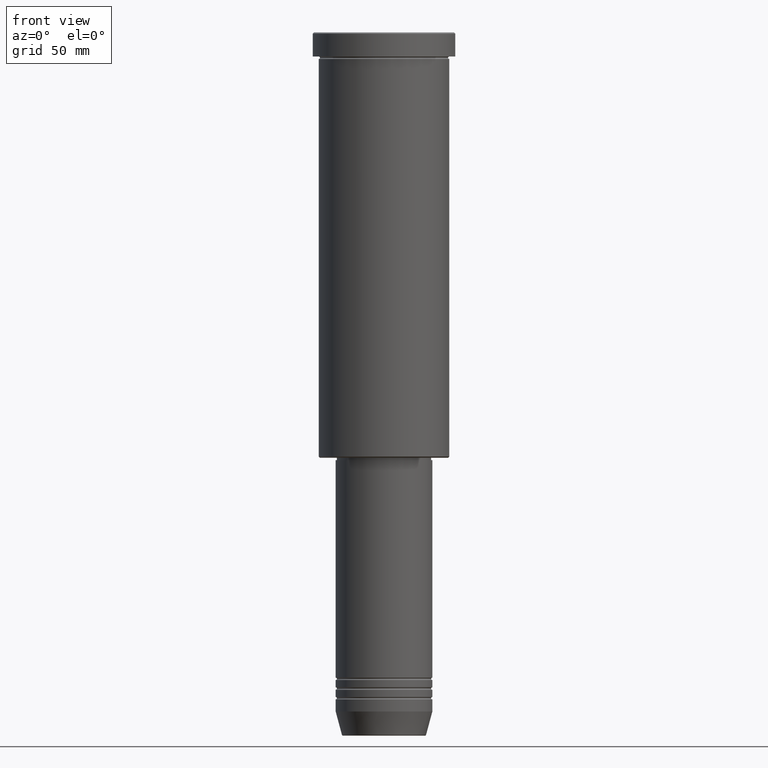
[diagram: clean part render]
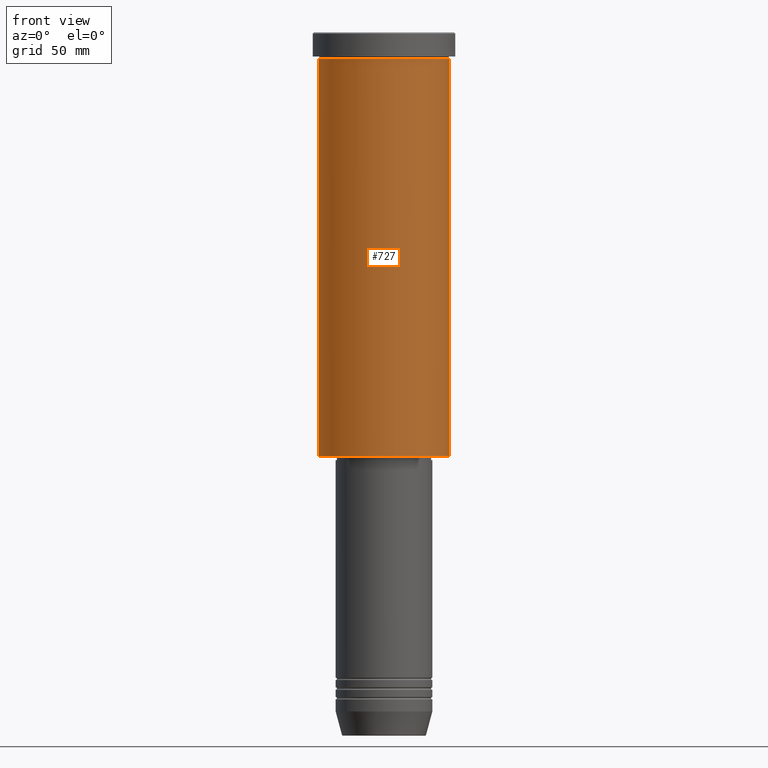
[diagram: same view with one face highlighted and labeled with its STEP entity id]
A machine part, front view. The second image highlights one B-rep face of the part: STEP entity #727.
In plain terms, the highlighted cylindrical surface (partial cylindrical patch) has radius 27 mm, axis along (-0, -0, 1).
Its self-contained STEP definition (entity closure, byte-faithful):
#13 = DIRECTION ( 'NONE',  ( -0.000000000000000000, -0.000000000000000000, 1.000000000000000000 ) ) ;
#20 = AXIS2_PLACEMENT_3D ( 'NONE', #559, #1103, #201 ) ;
#50 = CARTESIAN_POINT ( 'NONE',  ( 27.00000000000000355, 0.000000000000000000, 0.000000000000000000 ) ) ;
#83 = VERTEX_POINT ( 'NONE', #222 ) ;
#92 = CARTESIAN_POINT ( 'NONE',  ( -27.00000000000000355, 3.306546357697854128E-15, -175.5000000000000000 ) ) ;
#115 = CARTESIAN_POINT ( 'NONE',  ( 0.000000000000000000, 0.000000000000000000, 0.000000000000000000 ) ) ;
#168 = AXIS2_PLACEMENT_3D ( 'NONE', #115, #13, #935 ) ;
#173 = DIRECTION ( 'NONE',  ( -0.000000000000000000, -0.000000000000000000, 1.000000000000000000 ) ) ;
#185 = EDGE_LOOP ( 'NONE', ( #915, #1083, #423, #1081 ) ) ;
#187 = VECTOR ( 'NONE', #256, 1000.000000000000000 ) ;
#201 = DIRECTION ( 'NONE',  ( -1.000000000000000000, 0.000000000000000000, 0.000000000000000000 ) ) ;
#212 = AXIS2_PLACEMENT_3D ( 'NONE', #862, #173, #1043 ) ;
#222 = CARTESIAN_POINT ( 'NONE',  ( 27.00000000000000355, 0.000000000000000000, -10.99999999999999289 ) ) ;
#226 = FACE_OUTER_BOUND ( 'NONE', #185, .T. ) ;
#256 = DIRECTION ( 'NONE',  ( -0.000000000000000000, -0.000000000000000000, 1.000000000000000000 ) ) ;
#257 = VERTEX_POINT ( 'NONE', #1099 ) ;
#331 = EDGE_CURVE ( 'NONE', #257, #83, #1057, .T. ) ;
#423 = ORIENTED_EDGE ( 'NONE', *, *, #331, .T. ) ;
#430 = CIRCLE ( 'NONE', #20, 27.00000000000000355 ) ;
#478 = EDGE_CURVE ( 'NONE', #571, #686, #730, .T. ) ;
#559 = CARTESIAN_POINT ( 'NONE',  ( 0.000000000000000000, 0.000000000000000000, -175.5000000000000000 ) ) ;
#571 = VERTEX_POINT ( 'NONE', #92 ) ;
#686 = VERTEX_POINT ( 'NONE', #748 ) ;
#719 = CIRCLE ( 'NONE', #212, 27.00000000000000355 ) ;
#720 = DIRECTION ( 'NONE',  ( -0.000000000000000000, -0.000000000000000000, 1.000000000000000000 ) ) ;
#727 = ADVANCED_FACE ( 'NONE', ( #226 ), #826, .T. ) ;
#730 = LINE ( 'NONE', #1173, #1021 ) ;
#748 = CARTESIAN_POINT ( 'NONE',  ( -27.00000000000000355, 3.306546357697854128E-15, -10.99999999999999289 ) ) ;
#826 = CYLINDRICAL_SURFACE ( 'NONE', #168, 27.00000000000000355 ) ;
#862 = CARTESIAN_POINT ( 'NONE',  ( 0.000000000000000000, 0.000000000000000000, -10.99999999999999289 ) ) ;
#915 = ORIENTED_EDGE ( 'NONE', *, *, #478, .F. ) ;
#919 = EDGE_CURVE ( 'NONE', #686, #83, #719, .T. ) ;
#935 = DIRECTION ( 'NONE',  ( 1.000000000000000000, 0.000000000000000000, 0.000000000000000000 ) ) ;
#1021 = VECTOR ( 'NONE', #720, 1000.000000000000000 ) ;
#1043 = DIRECTION ( 'NONE',  ( 1.000000000000000000, 0.000000000000000000, 0.000000000000000000 ) ) ;
#1057 = LINE ( 'NONE', #50, #187 ) ;
#1081 = ORIENTED_EDGE ( 'NONE', *, *, #919, .F. ) ;
#1083 = ORIENTED_EDGE ( 'NONE', *, *, #1088, .T. ) ;
#1088 = EDGE_CURVE ( 'NONE', #571, #257, #430, .T. ) ;
#1099 = CARTESIAN_POINT ( 'NONE',  ( 27.00000000000000355, 0.000000000000000000, -175.5000000000000000 ) ) ;
#1103 = DIRECTION ( 'NONE',  ( -0.000000000000000000, -0.000000000000000000, 1.000000000000000000 ) ) ;
#1173 = CARTESIAN_POINT ( 'NONE',  ( -27.00000000000000355, 3.306546357697854128E-15, 0.000000000000000000 ) ) ;